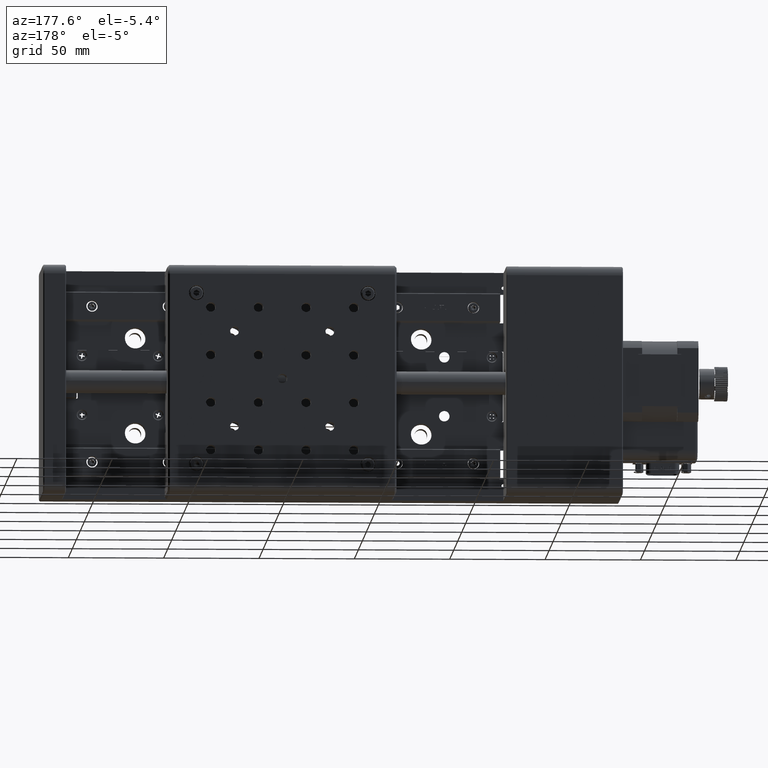
[diagram: clean part render]
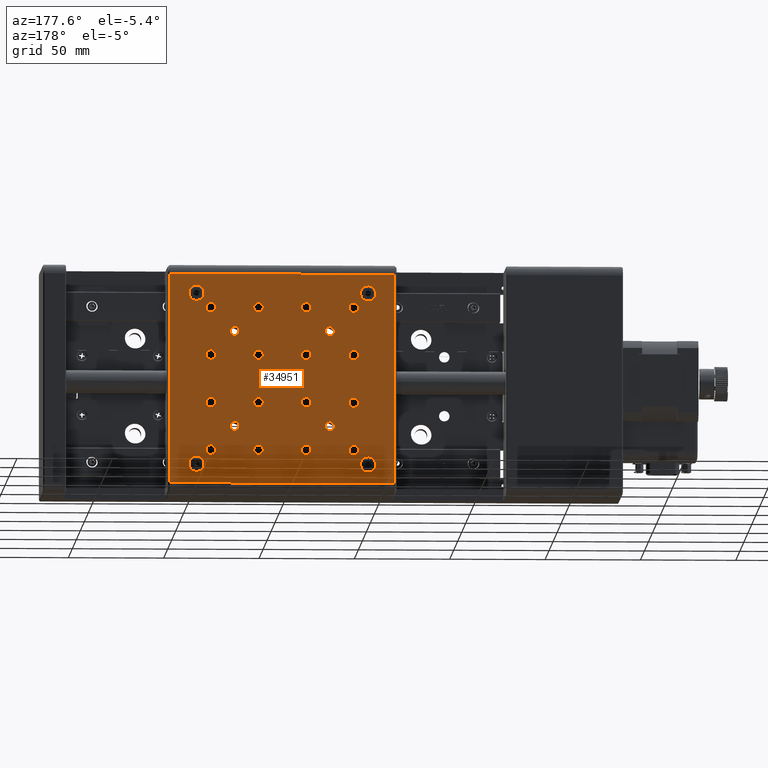
[diagram: same view with one face highlighted and labeled with its STEP entity id]
A machine part, auxiliary view. The second image highlights one B-rep face of the part: STEP entity #34951.
In plain terms, the highlighted planar face has unit normal (0, -1, -0).
Its self-contained STEP definition (entity closure, byte-faithful):
#62 = ORIENTED_EDGE ( 'NONE', *, *, #48765, .F. ) ;
#138 = CARTESIAN_POINT ( 'NONE',  ( -36.90598909781513000, 55.99999999999911900, 79.77887723323858900 ) ) ;
#140 = DIRECTION ( 'NONE',  ( -1.083698070157767700E-016, 1.000000000000000000, 1.359326502037854400E-014 ) ) ;
#260 = CARTESIAN_POINT ( 'NONE',  ( -94.40598909781510900, 55.99999999999904100, 84.77887723323861700 ) ) ;
#458 = ORIENTED_EDGE ( 'NONE', *, *, #40201, .F. ) ;
#499 = FACE_BOUND ( 'NONE', #19659, .T. ) ;
#560 = CARTESIAN_POINT ( 'NONE',  ( -24.40598909781513000, 55.99999999999929700, 67.13630385242964800 ) ) ;
#581 = DIRECTION ( 'NONE',  ( 0.0000000000000000000, 1.387778780781444400E-014, -1.000000000000000000 ) ) ;
#597 = EDGE_CURVE ( 'NONE', #28675, #31949, #2359, .T. ) ;
#707 = EDGE_CURVE ( 'NONE', #32629, #1631, #48254, .T. ) ;
#729 = DIRECTION ( 'NONE',  ( 0.0000000000000000000, 1.387778780781444400E-014, -1.000000000000000000 ) ) ;
#1130 = CIRCLE ( 'NONE', #40833, 2.500000000000002200 ) ;
#1316 = DIRECTION ( 'NONE',  ( -1.083698070157767700E-016, 1.000000000000000000, 1.359326502037854400E-014 ) ) ;
#1412 = DIRECTION ( 'NONE',  ( 0.0000000000000000000, -1.471709415559302100E-014, 1.000000000000000000 ) ) ;
#1460 = AXIS2_PLACEMENT_3D ( 'NONE', #10385, #22202, #37020 ) ;
#1462 = EDGE_CURVE ( 'NONE', #45322, #10440, #29090, .T. ) ;
#1483 = ORIENTED_EDGE ( 'NONE', *, *, #24450, .F. ) ;
#1528 = CIRCLE ( 'NONE', #15357, 2.500000000000002200 ) ;
#1631 = VERTEX_POINT ( 'NONE', #15731 ) ;
#1726 = EDGE_LOOP ( 'NONE', ( #2858, #43767 ) ) ;
#1879 = EDGE_CURVE ( 'NONE', #34100, #32783, #36787, .T. ) ;
#1881 = CIRCLE ( 'NONE', #18688, 2.500000000000002200 ) ;
#2012 = ORIENTED_EDGE ( 'NONE', *, *, #18579, .F. ) ;
#2258 = LINE ( 'NONE', #25905, #35017 ) ;
#2359 = CIRCLE ( 'NONE', #13869, 2.500000000000002200 ) ;
#2389 = VERTEX_POINT ( 'NONE', #33645 ) ;
#2622 = EDGE_CURVE ( 'NONE', #45271, #20333, #4507, .T. ) ;
#2659 = ORIENTED_EDGE ( 'NONE', *, *, #6266, .F. ) ;
#2678 = EDGE_CURVE ( 'NONE', #26879, #48123, #6927, .T. ) ;
#2858 = ORIENTED_EDGE ( 'NONE', *, *, #30262, .F. ) ;
#2871 = CARTESIAN_POINT ( 'NONE',  ( -86.90598909781513700, 55.99999999999948800, 52.27887723323856800 ) ) ;
#2999 = EDGE_CURVE ( 'NONE', #16233, #32629, #39120, .T. ) ;
#3268 = AXIS2_PLACEMENT_3D ( 'NONE', #23158, #11683, #45445 ) ;
#3298 = AXIS2_PLACEMENT_3D ( 'NONE', #9746, #6226, #48185 ) ;
#3360 = AXIS2_PLACEMENT_3D ( 'NONE', #38379, #4339, #42346 ) ;
#3505 = VERTEX_POINT ( 'NONE', #34522 ) ;
#3516 = DIRECTION ( 'NONE',  ( -2.168404344971006900E-016, 1.387778780781444400E-014, -1.000000000000000000 ) ) ;
#3585 = CIRCLE ( 'NONE', #25161, 4.000000000000003600 ) ;
#3620 = EDGE_CURVE ( 'NONE', #11830, #6660, #44393, .T. ) ;
#3704 = VERTEX_POINT ( 'NONE', #25531 ) ;
#3810 = AXIS2_PLACEMENT_3D ( 'NONE', #45043, #7442, #33767 ) ;
#3888 = VECTOR ( 'NONE', #48721, 1000.000000000000000 ) ;
#3992 = DIRECTION ( 'NONE',  ( 0.0000000000000000000, -1.387778780781441400E-014, 1.000000000000000000 ) ) ;
#4073 = AXIS2_PLACEMENT_3D ( 'NONE', #20238, #4906, #1412 ) ;
#4074 = EDGE_LOOP ( 'NONE', ( #44822, #14979 ) ) ;
#4124 = FACE_BOUND ( 'NONE', #20186, .T. ) ;
#4190 = DIRECTION ( 'NONE',  ( -1.083698070157767700E-016, 1.000000000000000000, 1.359326502037854400E-014 ) ) ;
#4339 = DIRECTION ( 'NONE',  ( -1.083698070157767700E-016, 1.000000000000000000, 1.359326502037854400E-014 ) ) ;
#4489 = DIRECTION ( 'NONE',  ( -1.083698070157767700E-016, 1.000000000000000000, 1.359326502037854400E-014 ) ) ;
#4507 = CIRCLE ( 'NONE', #15844, 2.500000000000004000 ) ;
#4614 = DIRECTION ( 'NONE',  ( -1.083698070157767700E-016, 1.000000000000000000, 1.359326502037854400E-014 ) ) ;
#4655 = AXIS2_PLACEMENT_3D ( 'NONE', #39934, #9617, #32104 ) ;
#4806 = DIRECTION ( 'NONE',  ( -1.083698070157767700E-016, 1.000000000000000000, 1.359326502037854400E-014 ) ) ;
#4842 = DIRECTION ( 'NONE',  ( -1.083698070157767700E-016, 1.000000000000000000, 1.359326502037854400E-014 ) ) ;
#4905 = DIRECTION ( 'NONE',  ( 0.0000000000000000000, 1.387778780781444400E-014, -1.000000000000000000 ) ) ;
#4906 = DIRECTION ( 'NONE',  ( -1.083698070157767700E-016, 1.000000000000000000, 1.359326502037854400E-014 ) ) ;
#5577 = EDGE_CURVE ( 'NONE', #27052, #22741, #37175, .T. ) ;
#5640 = CARTESIAN_POINT ( 'NONE',  ( -11.90598909781514400, 55.99999999999946000, 54.77887723323857500 ) ) ;
#6068 = CIRCLE ( 'NONE', #8702, 4.000000000000003600 ) ;
#6226 = DIRECTION ( 'NONE',  ( -1.083698070157767700E-016, 1.000000000000000000, 1.359326502037854400E-014 ) ) ;
#6234 = DIRECTION ( 'NONE',  ( 0.0000000000000000000, 1.387778780781444400E-014, -1.000000000000000000 ) ) ;
#6266 = EDGE_CURVE ( 'NONE', #2389, #25468, #21015, .T. ) ;
#6274 = DIRECTION ( 'NONE',  ( 0.0000000000000000000, -1.387778780781444400E-014, 1.000000000000000000 ) ) ;
#6280 = CARTESIAN_POINT ( 'NONE',  ( -61.90598909781511600, 55.99999999999982900, 27.27887723323857500 ) ) ;
#6378 = DIRECTION ( 'NONE',  ( -1.083698070157767700E-016, 1.000000000000000000, 1.359326502037854400E-014 ) ) ;
#6411 = CARTESIAN_POINT ( 'NONE',  ( -94.40598909781513700, 56.00000000000032700, -9.221122766761409300 ) ) ;
#6430 = EDGE_CURVE ( 'NONE', #6660, #11830, #40045, .T. ) ;
#6440 = DIRECTION ( 'NONE',  ( 0.0000000000000000000, 1.387778780781444400E-014, -1.000000000000000000 ) ) ;
#6450 = ORIENTED_EDGE ( 'NONE', *, *, #45654, .F. ) ;
#6498 = FACE_BOUND ( 'NONE', #38605, .T. ) ;
#6660 = VERTEX_POINT ( 'NONE', #13211 ) ;
#6687 = CIRCLE ( 'NONE', #32147, 2.357426619191058700 ) ;
#6875 = CARTESIAN_POINT ( 'NONE',  ( -4.405989097815130200, 55.99999999999904800, 84.77887723323858900 ) ) ;
#6927 = CIRCLE ( 'NONE', #4655, 2.500000000000001300 ) ;
#6968 = CARTESIAN_POINT ( 'NONE',  ( -74.40598909781505200, 55.99999999999999300, 14.77887723323856900 ) ) ;
#7057 = CARTESIAN_POINT ( 'NONE',  ( -24.40598909781510200, 56.00000000000000000, 14.77887723323862600 ) ) ;
#7123 = CARTESIAN_POINT ( 'NONE',  ( -86.90598909781505200, 56.00000000000013500, 4.778877233238543600 ) ) ;
#7170 = CIRCLE ( 'NONE', #17401, 2.357426619191034700 ) ;
#7440 = VERTEX_POINT ( 'NONE', #7123 ) ;
#7442 = DIRECTION ( 'NONE',  ( -1.083698070157767700E-016, 1.000000000000000000, 1.359326502037854400E-014 ) ) ;
#7498 = CIRCLE ( 'NONE', #38063, 3.999999999999996400 ) ;
#7551 = AXIS2_PLACEMENT_3D ( 'NONE', #18556, #29395, #49041 ) ;
#7646 = VERTEX_POINT ( 'NONE', #8611 ) ;
#7739 = DIRECTION ( 'NONE',  ( -1.083698070157767700E-016, 1.000000000000000000, 1.359326502037854400E-014 ) ) ;
#7744 = EDGE_CURVE ( 'NONE', #19585, #15249, #8951, .T. ) ;
#7901 = DIRECTION ( 'NONE',  ( 0.0000000000000000000, 1.387778780781444400E-014, -1.000000000000000000 ) ) ;
#7974 = CARTESIAN_POINT ( 'NONE',  ( -4.405989097815157700, 56.00000000000022000, -1.221122766761444200 ) ) ;
#8109 = VERTEX_POINT ( 'NONE', #30734 ) ;
#8187 = EDGE_CURVE ( 'NONE', #21322, #18132, #1130, .T. ) ;
#8207 = AXIS2_PLACEMENT_3D ( 'NONE', #36540, #36378, #6234 ) ;
#8234 = VERTEX_POINT ( 'NONE', #13493 ) ;
#8328 = FACE_BOUND ( 'NONE', #41207, .T. ) ;
#8393 = CARTESIAN_POINT ( 'NONE',  ( -49.40598909781514400, 55.99999999999962300, 42.27887723323858900 ) ) ;
#8489 = AXIS2_PLACEMENT_3D ( 'NONE', #17581, #29071, #21743 ) ;
#8575 = VERTEX_POINT ( 'NONE', #31918 ) ;
#8611 = CARTESIAN_POINT ( 'NONE',  ( -74.40598909781510900, 55.99999999999928900, 67.13630385242954900 ) ) ;
#8625 = CIRCLE ( 'NONE', #14124, 2.500000000000002200 ) ;
#8702 = AXIS2_PLACEMENT_3D ( 'NONE', #6875, #14377, #3516 ) ;
#8775 = EDGE_CURVE ( 'NONE', #9580, #17708, #17776, .T. ) ;
#8950 = FACE_BOUND ( 'NONE', #48323, .T. ) ;
#8951 = CIRCLE ( 'NONE', #8207, 2.500000000000002200 ) ;
#9006 = AXIS2_PLACEMENT_3D ( 'NONE', #45996, #4190, #34562 ) ;
#9053 = EDGE_LOOP ( 'NONE', ( #27675, #24585 ) ) ;
#9102 = EDGE_LOOP ( 'NONE', ( #46933, #44123 ) ) ;
#9311 = DIRECTION ( 'NONE',  ( 1.727014002062111000E-016, -1.359326502037854100E-014, 1.000000000000000000 ) ) ;
#9404 = CARTESIAN_POINT ( 'NONE',  ( -86.90598909781505200, 56.00000000000019900, -0.2211227667614540600 ) ) ;
#9520 = FACE_BOUND ( 'NONE', #9053, .T. ) ;
#9580 = VERTEX_POINT ( 'NONE', #21718 ) ;
#9617 = DIRECTION ( 'NONE',  ( -1.083698070157767700E-016, 1.000000000000000000, 1.359326502037854400E-014 ) ) ;
#9676 = AXIS2_PLACEMENT_3D ( 'NONE', #30604, #42280, #26754 ) ;
#9746 = CARTESIAN_POINT ( 'NONE',  ( -86.90598909781505200, 56.00000000000017100, 2.278877233238545000 ) ) ;
#9916 = DIRECTION ( 'NONE',  ( -1.083698070157767700E-016, 1.000000000000000000, 1.359326502037854400E-014 ) ) ;
#9973 = ORIENTED_EDGE ( 'NONE', *, *, #14214, .F. ) ;
#10040 = CIRCLE ( 'NONE', #4073, 2.357426619191058700 ) ;
#10309 = VERTEX_POINT ( 'NONE', #31325 ) ;
#10385 = CARTESIAN_POINT ( 'NONE',  ( -86.90598909781513700, 55.99999999999948800, 52.27887723323856800 ) ) ;
#10440 = VERTEX_POINT ( 'NONE', #15328 ) ;
#10525 = CARTESIAN_POINT ( 'NONE',  ( -86.90598909781505200, 56.00000000000017100, 2.278877233238545000 ) ) ;
#10552 = DIRECTION ( 'NONE',  ( 0.0000000000000000000, -1.387778780781446500E-014, 1.000000000000000000 ) ) ;
#10556 = CARTESIAN_POINT ( 'NONE',  ( -61.90598909781508000, 56.00000000000013500, 4.778877233238580000 ) ) ;
#10798 = DIRECTION ( 'NONE',  ( 0.0000000000000000000, 1.471709415559316900E-014, -1.000000000000000000 ) ) ;
#10802 = CIRCLE ( 'NONE', #13057, 2.499999999999999100 ) ;
#10819 = EDGE_LOOP ( 'NONE', ( #11547, #48560 ) ) ;
#10896 = DIRECTION ( 'NONE',  ( -1.083698070157767700E-016, 1.000000000000000000, 1.359326502037854400E-014 ) ) ;
#10954 = EDGE_CURVE ( 'NONE', #39506, #26339, #1528, .T. ) ;
#11234 = EDGE_LOOP ( 'NONE', ( #16473, #18395 ) ) ;
#11305 = EDGE_CURVE ( 'NONE', #8234, #7646, #12266, .T. ) ;
#11368 = VECTOR ( 'NONE', #19412, 1000.000000000000000 ) ;
#11445 = ORIENTED_EDGE ( 'NONE', *, *, #29287, .F. ) ;
#11547 = ORIENTED_EDGE ( 'NONE', *, *, #1462, .F. ) ;
#11583 = DIRECTION ( 'NONE',  ( 0.0000000000000000000, 1.387778780781444400E-014, -1.000000000000000000 ) ) ;
#11620 = CARTESIAN_POINT ( 'NONE',  ( -86.90598909781508000, 55.99999999999982900, 27.27887723323853900 ) ) ;
#11683 = DIRECTION ( 'NONE',  ( -1.083698070157767700E-016, 1.000000000000000000, 1.359326502037854400E-014 ) ) ;
#11830 = VERTEX_POINT ( 'NONE', #15953 ) ;
#11871 = FACE_BOUND ( 'NONE', #17063, .T. ) ;
#11909 = EDGE_CURVE ( 'NONE', #33542, #16233, #45304, .T. ) ;
#12041 = DIRECTION ( 'NONE',  ( -2.168404344971010800E-016, 1.387778780781446900E-014, -1.000000000000000000 ) ) ;
#12152 = CIRCLE ( 'NONE', #9006, 2.500000000000002200 ) ;
#12153 = AXIS2_PLACEMENT_3D ( 'NONE', #37408, #41244, #41582 ) ;
#12199 = VERTEX_POINT ( 'NONE', #41060 ) ;
#12266 = CIRCLE ( 'NONE', #27139, 2.357426619191069300 ) ;
#12283 = DIRECTION ( 'NONE',  ( -1.083698070157767700E-016, 1.000000000000000000, 1.359326502037854400E-014 ) ) ;
#12500 = FACE_BOUND ( 'NONE', #42138, .T. ) ;
#12508 = CARTESIAN_POINT ( 'NONE',  ( -61.90598909781508000, 56.00000000000019900, -0.2211227667614215400 ) ) ;
#12587 = DIRECTION ( 'NONE',  ( 0.0000000000000000000, -1.387778780781443500E-014, 1.000000000000000000 ) ) ;
#12913 = ORIENTED_EDGE ( 'NONE', *, *, #34389, .F. ) ;
#13006 = ORIENTED_EDGE ( 'NONE', *, *, #1879, .F. ) ;
#13057 = AXIS2_PLACEMENT_3D ( 'NONE', #10525, #40683, #17861 ) ;
#13087 = DIRECTION ( 'NONE',  ( -1.083698070157767700E-016, 1.000000000000000000, 1.359326502037854400E-014 ) ) ;
#13196 = VERTEX_POINT ( 'NONE', #47320 ) ;
#13211 = CARTESIAN_POINT ( 'NONE',  ( -11.90598909781514400, 55.99999999999980100, 29.77887723323865300 ) ) ;
#13359 = CIRCLE ( 'NONE', #40578, 2.499999999999998700 ) ;
#13474 = DIRECTION ( 'NONE',  ( 0.0000000000000000000, -1.387778780781444400E-014, 1.000000000000000000 ) ) ;
#13493 = CARTESIAN_POINT ( 'NONE',  ( -74.40598909781510900, 55.99999999999935300, 62.42145061404741600 ) ) ;
#13576 = AXIS2_PLACEMENT_3D ( 'NONE', #32794, #13638, #13474 ) ;
#13638 = DIRECTION ( 'NONE',  ( -1.083698070157767700E-016, 1.000000000000000000, 1.359326502037854400E-014 ) ) ;
#13682 = CARTESIAN_POINT ( 'NONE',  ( -86.90598909781508000, 55.99999999999986500, 24.77887723323853600 ) ) ;
#13684 = AXIS2_PLACEMENT_3D ( 'NONE', #19128, #19788, #45936 ) ;
#13768 = CARTESIAN_POINT ( 'NONE',  ( -24.40598909781510200, 55.99999999999996400, 17.13630385242968000 ) ) ;
#13775 = ORIENTED_EDGE ( 'NONE', *, *, #28018, .F. ) ;
#13869 = AXIS2_PLACEMENT_3D ( 'NONE', #48056, #29083, #6274 ) ;
#13870 = CARTESIAN_POINT ( 'NONE',  ( -86.90598909781513700, 55.99999999999945300, 54.77887723323856800 ) ) ;
#13920 = DIRECTION ( 'NONE',  ( 0.0000000000000000000, 1.387778780781444400E-014, -1.000000000000000000 ) ) ;
#13933 = DIRECTION ( 'NONE',  ( -1.083698070157767700E-016, 1.000000000000000000, 1.359326502037854400E-014 ) ) ;
#14124 = AXIS2_PLACEMENT_3D ( 'NONE', #31925, #20419, #47549 ) ;
#14214 = EDGE_CURVE ( 'NONE', #7440, #42199, #48055, .T. ) ;
#14377 = DIRECTION ( 'NONE',  ( -1.083698070157767700E-016, 1.000000000000000000, 1.359326502037854400E-014 ) ) ;
#14513 = VERTEX_POINT ( 'NONE', #41863 ) ;
#14582 = CARTESIAN_POINT ( 'NONE',  ( -36.90598909781512300, 55.99999999999983700, 27.27887723323861000 ) ) ;
#14680 = VERTEX_POINT ( 'NONE', #29146 ) ;
#14814 = ORIENTED_EDGE ( 'NONE', *, *, #5577, .F. ) ;
#14833 = ORIENTED_EDGE ( 'NONE', *, *, #3620, .F. ) ;
#14858 = FACE_BOUND ( 'NONE', #20116, .T. ) ;
#14979 = ORIENTED_EDGE ( 'NONE', *, *, #31561, .F. ) ;
#15249 = VERTEX_POINT ( 'NONE', #138 ) ;
#15251 = CARTESIAN_POINT ( 'NONE',  ( -11.90598909781513700, 55.99999999999911900, 79.77887723323858900 ) ) ;
#15328 = CARTESIAN_POINT ( 'NONE',  ( -94.40598909781513700, 56.00000000000021300, -1.221122766761416400 ) ) ;
#15357 = AXIS2_PLACEMENT_3D ( 'NONE', #11620, #12283, #581 ) ;
#15386 = CIRCLE ( 'NONE', #38295, 2.500000000000007500 ) ;
#15731 = CARTESIAN_POINT ( 'NONE',  ( -108.4059890978151400, 55.99999999999890600, 94.77887723323866000 ) ) ;
#15844 = AXIS2_PLACEMENT_3D ( 'NONE', #19764, #4614, #39291 ) ;
#15953 = CARTESIAN_POINT ( 'NONE',  ( -11.90598909781514400, 55.99999999999987200, 24.77887723323866000 ) ) ;
#16053 = EDGE_CURVE ( 'NONE', #22004, #49424, #39650, .T. ) ;
#16059 = FACE_BOUND ( 'NONE', #1726, .T. ) ;
#16205 = CARTESIAN_POINT ( 'NONE',  ( -108.4059890978151500, 56.00000000000040500, -15.22112276676136700 ) ) ;
#16233 = VERTEX_POINT ( 'NONE', #31562 ) ;
#16298 = ORIENTED_EDGE ( 'NONE', *, *, #22536, .F. ) ;
#16351 = EDGE_CURVE ( 'NONE', #13196, #27532, #43802, .T. ) ;
#16361 = CARTESIAN_POINT ( 'NONE',  ( -36.90598909781507300, 56.00000000000014200, 4.778877233238610200 ) ) ;
#16372 = CARTESIAN_POINT ( 'NONE',  ( -36.90598909781507300, 56.00000000000017800, 2.278877233238607600 ) ) ;
#16473 = ORIENTED_EDGE ( 'NONE', *, *, #26911, .F. ) ;
#17034 = DIRECTION ( 'NONE',  ( 0.0000000000000000000, 1.387778780781444400E-014, -1.000000000000000000 ) ) ;
#17063 = EDGE_LOOP ( 'NONE', ( #14833, #49165 ) ) ;
#17106 = CIRCLE ( 'NONE', #21694, 2.500000000000001300 ) ;
#17401 = AXIS2_PLACEMENT_3D ( 'NONE', #6968, #33622, #10798 ) ;
#17510 = CIRCLE ( 'NONE', #9676, 2.500000000000002200 ) ;
#17527 = EDGE_CURVE ( 'NONE', #18497, #14680, #46007, .T. ) ;
#17581 = CARTESIAN_POINT ( 'NONE',  ( -94.40598909781513700, 56.00000000000027000, -5.221122766761412800 ) ) ;
#17708 = VERTEX_POINT ( 'NONE', #5640 ) ;
#17761 = AXIS2_PLACEMENT_3D ( 'NONE', #28683, #13087, #17034 ) ;
#17776 = CIRCLE ( 'NONE', #13684, 2.500000000000002200 ) ;
#17861 = DIRECTION ( 'NONE',  ( 0.0000000000000000000, 1.387778780781446100E-014, -1.000000000000000000 ) ) ;
#17863 = DIRECTION ( 'NONE',  ( 0.0000000000000000000, 1.387778780781446900E-014, -1.000000000000000000 ) ) ;
#17867 = FACE_BOUND ( 'NONE', #18432, .T. ) ;
#18053 = DIRECTION ( 'NONE',  ( 0.0000000000000000000, 1.387778780781444900E-014, -1.000000000000000000 ) ) ;
#18132 = VERTEX_POINT ( 'NONE', #30102 ) ;
#18229 = CARTESIAN_POINT ( 'NONE',  ( -49.40598909781515100, 56.00000000000041200, -15.22112276676137400 ) ) ;
#18317 = CARTESIAN_POINT ( 'NONE',  ( -74.40598909781510900, 55.99999999999931800, 64.77887723323848900 ) ) ;
#18395 = ORIENTED_EDGE ( 'NONE', *, *, #35323, .F. ) ;
#18432 = EDGE_LOOP ( 'NONE', ( #49328, #23540 ) ) ;
#18497 = VERTEX_POINT ( 'NONE', #29558 ) ;
#18556 = CARTESIAN_POINT ( 'NONE',  ( -11.90598909781509500, 56.00000000000017800, 2.278877233238656000 ) ) ;
#18579 = EDGE_CURVE ( 'NONE', #20333, #45271, #45758, .T. ) ;
#18597 = CARTESIAN_POINT ( 'NONE',  ( -94.40598909781510900, 55.99999999999909800, 80.77887723323860300 ) ) ;
#18688 = AXIS2_PLACEMENT_3D ( 'NONE', #30798, #45268, #34652 ) ;
#18826 = CARTESIAN_POINT ( 'NONE',  ( -11.90598909781509500, 56.00000000000020600, -0.2211227667613504000 ) ) ;
#19009 = ORIENTED_EDGE ( 'NONE', *, *, #2622, .F. ) ;
#19101 = AXIS2_PLACEMENT_3D ( 'NONE', #42809, #4806, #35311 ) ;
#19128 = CARTESIAN_POINT ( 'NONE',  ( -11.90598909781514400, 55.99999999999949600, 52.27887723323857500 ) ) ;
#19188 = CIRCLE ( 'NONE', #47916, 3.999999999999996400 ) ;
#19383 = CARTESIAN_POINT ( 'NONE',  ( -11.90598909781513700, 55.99999999999915400, 77.27887723323858900 ) ) ;
#19412 = DIRECTION ( 'NONE',  ( -1.727014002062110700E-016, 1.359326502037854100E-014, -1.000000000000000000 ) ) ;
#19498 = ORIENTED_EDGE ( 'NONE', *, *, #38435, .F. ) ;
#19521 = CARTESIAN_POINT ( 'NONE',  ( -86.90598909781508000, 55.99999999999982900, 27.27887723323853900 ) ) ;
#19585 = VERTEX_POINT ( 'NONE', #44418 ) ;
#19659 = EDGE_LOOP ( 'NONE', ( #19498, #27203 ) ) ;
#19682 = VERTEX_POINT ( 'NONE', #15251 ) ;
#19707 = EDGE_CURVE ( 'NONE', #7646, #8234, #40979, .T. ) ;
#19764 = CARTESIAN_POINT ( 'NONE',  ( -36.90598909781507300, 56.00000000000017800, 2.278877233238607600 ) ) ;
#19768 = EDGE_CURVE ( 'NONE', #19682, #3704, #49273, .T. ) ;
#19788 = DIRECTION ( 'NONE',  ( -1.083698070157767700E-016, 1.000000000000000000, 1.359326502037854400E-014 ) ) ;
#20064 = DIRECTION ( 'NONE',  ( -1.083698070157767700E-016, 1.000000000000000000, 1.359326502037854400E-014 ) ) ;
#20092 = ORIENTED_EDGE ( 'NONE', *, *, #11909, .T. ) ;
#20116 = EDGE_LOOP ( 'NONE', ( #25570, #26353 ) ) ;
#20186 = EDGE_LOOP ( 'NONE', ( #16298, #31376 ) ) ;
#20238 = CARTESIAN_POINT ( 'NONE',  ( -24.40598909781510200, 56.00000000000000000, 14.77887723323862600 ) ) ;
#20333 = VERTEX_POINT ( 'NONE', #16361 ) ;
#20419 = DIRECTION ( 'NONE',  ( -1.083698070157767700E-016, 1.000000000000000000, 1.359326502037854400E-014 ) ) ;
#20611 = ORIENTED_EDGE ( 'NONE', *, *, #11305, .F. ) ;
#20760 = AXIS2_PLACEMENT_3D ( 'NONE', #19383, #46040, #729 ) ;
#21015 = CIRCLE ( 'NONE', #32425, 4.000000000000003600 ) ;
#21024 = DIRECTION ( 'NONE',  ( -1.083698070157767700E-016, 1.000000000000000000, 1.359326502037854400E-014 ) ) ;
#21142 = CARTESIAN_POINT ( 'NONE',  ( -86.90598909781515100, 55.99999999999918300, 74.77887723323856100 ) ) ;
#21312 = DIRECTION ( 'NONE',  ( -1.083698070157767700E-016, 1.000000000000000000, 1.359326502037854400E-014 ) ) ;
#21322 = VERTEX_POINT ( 'NONE', #23745 ) ;
#21397 = ORIENTED_EDGE ( 'NONE', *, *, #47792, .F. ) ;
#21440 = PLANE ( 'NONE',  #46438 ) ;
#21550 = EDGE_LOOP ( 'NONE', ( #13006, #30877 ) ) ;
#21694 = AXIS2_PLACEMENT_3D ( 'NONE', #32738, #9916, #18053 ) ;
#21717 = DIRECTION ( 'NONE',  ( -1.083698070157767700E-016, 1.000000000000000000, 1.359326502037854400E-014 ) ) ;
#21718 = CARTESIAN_POINT ( 'NONE',  ( -11.90598909781514400, 55.99999999999953100, 49.77887723323857500 ) ) ;
#21743 = DIRECTION ( 'NONE',  ( 0.0000000000000000000, 1.387778780781446900E-014, -1.000000000000000000 ) ) ;
#21856 = ORIENTED_EDGE ( 'NONE', *, *, #16053, .F. ) ;
#21990 = VERTEX_POINT ( 'NONE', #21142 ) ;
#22004 = VERTEX_POINT ( 'NONE', #40626 ) ;
#22202 = DIRECTION ( 'NONE',  ( -1.083698070157767700E-016, 1.000000000000000000, 1.359326502037854400E-014 ) ) ;
#22254 = EDGE_CURVE ( 'NONE', #8575, #45541, #17510, .T. ) ;
#22519 = VERTEX_POINT ( 'NONE', #13768 ) ;
#22536 = EDGE_CURVE ( 'NONE', #18132, #21322, #48473, .T. ) ;
#22588 = ORIENTED_EDGE ( 'NONE', *, *, #45372, .F. ) ;
#22596 = FACE_BOUND ( 'NONE', #46357, .T. ) ;
#22741 = VERTEX_POINT ( 'NONE', #560 ) ;
#22748 = EDGE_LOOP ( 'NONE', ( #46086, #20092, #36609, #34433 ) ) ;
#22770 = CIRCLE ( 'NONE', #40091, 2.500000000000002200 ) ;
#23009 = DIRECTION ( 'NONE',  ( -1.083698070157767700E-016, 1.000000000000000000, 1.359326502037854400E-014 ) ) ;
#23123 = CIRCLE ( 'NONE', #27060, 2.500000000000002200 ) ;
#23158 = CARTESIAN_POINT ( 'NONE',  ( -24.40598909781513000, 55.99999999999932500, 64.77887723323857500 ) ) ;
#23341 = EDGE_CURVE ( 'NONE', #3704, #19682, #44831, .T. ) ;
#23540 = ORIENTED_EDGE ( 'NONE', *, *, #597, .F. ) ;
#23707 = EDGE_CURVE ( 'NONE', #35011, #14513, #38296, .T. ) ;
#23745 = CARTESIAN_POINT ( 'NONE',  ( -61.90598909781511600, 55.99999999999979400, 29.77887723323857500 ) ) ;
#23800 = FACE_BOUND ( 'NONE', #10819, .T. ) ;
#24450 = EDGE_CURVE ( 'NONE', #10309, #12199, #42961, .T. ) ;
#24585 = ORIENTED_EDGE ( 'NONE', *, *, #10954, .F. ) ;
#24803 = EDGE_LOOP ( 'NONE', ( #30780, #6450 ) ) ;
#25110 = AXIS2_PLACEMENT_3D ( 'NONE', #44937, #38160, #37983 ) ;
#25161 = AXIS2_PLACEMENT_3D ( 'NONE', #260, #42124, #33979 ) ;
#25368 = DIRECTION ( 'NONE',  ( 0.0000000000000000000, -1.387778780781444400E-014, 1.000000000000000000 ) ) ;
#25468 = VERTEX_POINT ( 'NONE', #18597 ) ;
#25531 = CARTESIAN_POINT ( 'NONE',  ( -11.90598909781513700, 55.99999999999919000, 74.77887723323858900 ) ) ;
#25535 = CIRCLE ( 'NONE', #25759, 2.357426619191034700 ) ;
#25570 = ORIENTED_EDGE ( 'NONE', *, *, #42949, .F. ) ;
#25759 = AXIS2_PLACEMENT_3D ( 'NONE', #47817, #21024, #36179 ) ;
#25808 = EDGE_CURVE ( 'NONE', #32783, #34100, #22770, .T. ) ;
#25905 = CARTESIAN_POINT ( 'NONE',  ( -49.40598909781513700, 55.99999999999891300, 94.77887723323866000 ) ) ;
#26157 = FACE_BOUND ( 'NONE', #31553, .T. ) ;
#26277 = AXIS2_PLACEMENT_3D ( 'NONE', #27479, #4489, #35164 ) ;
#26339 = VERTEX_POINT ( 'NONE', #13682 ) ;
#26353 = ORIENTED_EDGE ( 'NONE', *, *, #23707, .F. ) ;
#26590 = EDGE_CURVE ( 'NONE', #45541, #8575, #1881, .T. ) ;
#26717 = CIRCLE ( 'NONE', #39513, 2.500000000000002200 ) ;
#26754 = DIRECTION ( 'NONE',  ( 0.0000000000000000000, 1.387778780781444400E-014, -1.000000000000000000 ) ) ;
#26774 = FACE_BOUND ( 'NONE', #9102, .T. ) ;
#26879 = VERTEX_POINT ( 'NONE', #10556 ) ;
#26884 = VERTEX_POINT ( 'NONE', #40711 ) ;
#26911 = EDGE_CURVE ( 'NONE', #32577, #22519, #6687, .T. ) ;
#27052 = VERTEX_POINT ( 'NONE', #49197 ) ;
#27060 = AXIS2_PLACEMENT_3D ( 'NONE', #40887, #7739, #7901 ) ;
#27139 = AXIS2_PLACEMENT_3D ( 'NONE', #18317, #41316, #48957 ) ;
#27203 = ORIENTED_EDGE ( 'NONE', *, *, #17527, .F. ) ;
#27479 = CARTESIAN_POINT ( 'NONE',  ( -11.90598909781513700, 55.99999999999915400, 77.27887723323858900 ) ) ;
#27490 = CARTESIAN_POINT ( 'NONE',  ( -24.40598909781513000, 55.99999999999932500, 64.77887723323857500 ) ) ;
#27491 = EDGE_CURVE ( 'NONE', #42199, #7440, #10802, .T. ) ;
#27532 = VERTEX_POINT ( 'NONE', #32698 ) ;
#27553 = CARTESIAN_POINT ( 'NONE',  ( -61.90598909781511600, 55.99999999999982900, 27.27887723323857500 ) ) ;
#27675 = ORIENTED_EDGE ( 'NONE', *, *, #44153, .F. ) ;
#27858 = CIRCLE ( 'NONE', #32205, 3.999999999999996400 ) ;
#28018 = EDGE_CURVE ( 'NONE', #17708, #9580, #41143, .T. ) ;
#28578 = FACE_BOUND ( 'NONE', #21550, .T. ) ;
#28675 = VERTEX_POINT ( 'NONE', #45202 ) ;
#28683 = CARTESIAN_POINT ( 'NONE',  ( -36.90598909781513700, 55.99999999999949600, 52.27887723323858200 ) ) ;
#28743 = ORIENTED_EDGE ( 'NONE', *, *, #22254, .F. ) ;
#29071 = DIRECTION ( 'NONE',  ( -1.083698070157767700E-016, 1.000000000000000000, 1.359326502037854400E-014 ) ) ;
#29083 = DIRECTION ( 'NONE',  ( -1.083698070157767700E-016, 1.000000000000000000, 1.359326502037854400E-014 ) ) ;
#29090 = CIRCLE ( 'NONE', #8489, 3.999999999999996400 ) ;
#29107 = AXIS2_PLACEMENT_3D ( 'NONE', #37539, #33386, #10552 ) ;
#29138 = FACE_BOUND ( 'NONE', #48313, .T. ) ;
#29146 = CARTESIAN_POINT ( 'NONE',  ( -36.90598909781512300, 55.99999999999987200, 24.77887723323861000 ) ) ;
#29181 = CARTESIAN_POINT ( 'NONE',  ( -94.40598909781513700, 56.00000000000027000, -5.221122766761412800 ) ) ;
#29287 = EDGE_CURVE ( 'NONE', #49424, #22004, #15386, .T. ) ;
#29395 = DIRECTION ( 'NONE',  ( -1.083698070157767700E-016, 1.000000000000000000, 1.359326502037854400E-014 ) ) ;
#29418 = DIRECTION ( 'NONE',  ( 1.000000000000000000, 1.083698070157791000E-016, -1.727014250132936800E-016 ) ) ;
#29558 = CARTESIAN_POINT ( 'NONE',  ( -36.90598909781512300, 55.99999999999980100, 29.77887723323860700 ) ) ;
#30087 = EDGE_LOOP ( 'NONE', ( #14814, #458 ) ) ;
#30102 = CARTESIAN_POINT ( 'NONE',  ( -61.90598909781511600, 55.99999999999986500, 24.77887723323857100 ) ) ;
#30228 = DIRECTION ( 'NONE',  ( 1.727014002062110700E-016, -1.359326502037854100E-014, 1.000000000000000000 ) ) ;
#30262 = EDGE_CURVE ( 'NONE', #48123, #26879, #17106, .T. ) ;
#30434 = CARTESIAN_POINT ( 'NONE',  ( 9.594010902184861000, 55.99999999999892000, 94.77887723323864600 ) ) ;
#30604 = CARTESIAN_POINT ( 'NONE',  ( -49.40598909781514400, 55.99999999999965900, 39.77887723323858900 ) ) ;
#30684 = ORIENTED_EDGE ( 'NONE', *, *, #44353, .F. ) ;
#30704 = CIRCLE ( 'NONE', #12153, 2.500000000000002200 ) ;
#30734 = CARTESIAN_POINT ( 'NONE',  ( -86.90598909781515100, 55.99999999999911200, 79.77887723323856100 ) ) ;
#30780 = ORIENTED_EDGE ( 'NONE', *, *, #39243, .F. ) ;
#30798 = CARTESIAN_POINT ( 'NONE',  ( -49.40598909781514400, 55.99999999999965900, 39.77887723323858900 ) ) ;
#30877 = ORIENTED_EDGE ( 'NONE', *, *, #25808, .F. ) ;
#30999 = CARTESIAN_POINT ( 'NONE',  ( -4.405989097815157700, 56.00000000000027700, -5.221122766761440400 ) ) ;
#31037 = AXIS2_PLACEMENT_3D ( 'NONE', #6280, #13933, #6440 ) ;
#31121 = CIRCLE ( 'NONE', #3268, 2.357426619191062200 ) ;
#31325 = CARTESIAN_POINT ( 'NONE',  ( -4.405989097815131000, 55.99999999999910500, 80.77887723323857500 ) ) ;
#31376 = ORIENTED_EDGE ( 'NONE', *, *, #8187, .F. ) ;
#31553 = EDGE_LOOP ( 'NONE', ( #1483, #43832 ) ) ;
#31561 = EDGE_CURVE ( 'NONE', #15249, #19585, #8625, .T. ) ;
#31562 = CARTESIAN_POINT ( 'NONE',  ( 9.594010902184848500, 56.00000000000041900, -15.22112276676138100 ) ) ;
#31772 = CARTESIAN_POINT ( 'NONE',  ( -4.405989097815158600, 56.00000000000033400, -9.221122766761437700 ) ) ;
#31918 = CARTESIAN_POINT ( 'NONE',  ( -49.40598909781514400, 55.99999999999969400, 37.27887723323858200 ) ) ;
#31925 = CARTESIAN_POINT ( 'NONE',  ( -36.90598909781513000, 55.99999999999915400, 77.27887723323858900 ) ) ;
#31949 = VERTEX_POINT ( 'NONE', #38677 ) ;
#32008 = DIRECTION ( 'NONE',  ( 0.0000000000000000000, 1.471709415559299900E-014, -1.000000000000000000 ) ) ;
#32104 = DIRECTION ( 'NONE',  ( 0.0000000000000000000, 1.387778780781444900E-014, -1.000000000000000000 ) ) ;
#32113 = FACE_BOUND ( 'NONE', #33572, .T. ) ;
#32122 = DIRECTION ( 'NONE',  ( 1.083698070157767700E-016, -1.000000000000000000, -1.359326502037854100E-014 ) ) ;
#32147 = AXIS2_PLACEMENT_3D ( 'NONE', #7057, #21717, #33713 ) ;
#32205 = AXIS2_PLACEMENT_3D ( 'NONE', #30999, #23009, #12041 ) ;
#32425 = AXIS2_PLACEMENT_3D ( 'NONE', #37067, #41077, #13920 ) ;
#32577 = VERTEX_POINT ( 'NONE', #47664 ) ;
#32621 = CARTESIAN_POINT ( 'NONE',  ( -49.40598909781514400, 55.99999999999965900, 39.77887723323858900 ) ) ;
#32629 = VERTEX_POINT ( 'NONE', #16205 ) ;
#32698 = CARTESIAN_POINT ( 'NONE',  ( -36.90598909781513700, 55.99999999999946000, 54.77887723323858200 ) ) ;
#32738 = CARTESIAN_POINT ( 'NONE',  ( -61.90598909781508000, 56.00000000000017100, 2.278877233238580000 ) ) ;
#32744 = FACE_BOUND ( 'NONE', #11234, .T. ) ;
#32783 = VERTEX_POINT ( 'NONE', #13870 ) ;
#32794 = CARTESIAN_POINT ( 'NONE',  ( -61.90598909781515100, 55.99999999999914700, 77.27887723323856100 ) ) ;
#33386 = DIRECTION ( 'NONE',  ( -1.083698070157767700E-016, 1.000000000000000000, 1.359326502037854400E-014 ) ) ;
#33542 = VERTEX_POINT ( 'NONE', #30434 ) ;
#33572 = EDGE_LOOP ( 'NONE', ( #30684, #12913 ) ) ;
#33622 = DIRECTION ( 'NONE',  ( -1.083698070157767700E-016, 1.000000000000000000, 1.359326502037854400E-014 ) ) ;
#33645 = CARTESIAN_POINT ( 'NONE',  ( -94.40598909781510900, 55.99999999999899100, 88.77887723323860300 ) ) ;
#33713 = DIRECTION ( 'NONE',  ( 0.0000000000000000000, -1.471709415559302100E-014, 1.000000000000000000 ) ) ;
#33767 = DIRECTION ( 'NONE',  ( 0.0000000000000000000, -1.471709415559295500E-014, 1.000000000000000000 ) ) ;
#33978 = CARTESIAN_POINT ( 'NONE',  ( -61.90598909781515100, 55.99999999999914700, 77.27887723323856100 ) ) ;
#33979 = DIRECTION ( 'NONE',  ( 0.0000000000000000000, 1.387778780781444400E-014, -1.000000000000000000 ) ) ;
#34100 = VERTEX_POINT ( 'NONE', #38246 ) ;
#34389 = EDGE_CURVE ( 'NONE', #26884, #3505, #7170, .T. ) ;
#34433 = ORIENTED_EDGE ( 'NONE', *, *, #707, .T. ) ;
#34522 = CARTESIAN_POINT ( 'NONE',  ( -74.40598909781505200, 56.00000000000002800, 12.42145061404753600 ) ) ;
#34562 = DIRECTION ( 'NONE',  ( 0.0000000000000000000, -1.387778780781444400E-014, 1.000000000000000000 ) ) ;
#34652 = DIRECTION ( 'NONE',  ( 0.0000000000000000000, 1.387778780781444400E-014, -1.000000000000000000 ) ) ;
#34937 = CARTESIAN_POINT ( 'NONE',  ( -86.90598909781508000, 55.99999999999979400, 29.77887723323854300 ) ) ;
#34951 = ADVANCED_FACE ( 'NONE', ( #44671, #26157, #23800, #16059, #8950, #9520, #4124, #17867, #28578, #45218, #8328, #26774, #35130, #14858, #42248, #32113, #41053, #32744, #49398, #499, #11871, #6498, #29138, #22596, #35715, #12500 ), #21440, .F. ) ;
#35011 = VERTEX_POINT ( 'NONE', #44897 ) ;
#35017 = VECTOR ( 'NONE', #29418, 1000.000000000000000 ) ;
#35130 = FACE_BOUND ( 'NONE', #4074, .T. ) ;
#35164 = DIRECTION ( 'NONE',  ( 0.0000000000000000000, 1.387778780781444400E-014, -1.000000000000000000 ) ) ;
#35186 = ORIENTED_EDGE ( 'NONE', *, *, #16351, .F. ) ;
#35311 = DIRECTION ( 'NONE',  ( 0.0000000000000000000, -1.387778780781444400E-014, 1.000000000000000000 ) ) ;
#35323 = EDGE_CURVE ( 'NONE', #22519, #32577, #10040, .T. ) ;
#35484 = DIRECTION ( 'NONE',  ( 0.0000000000000000000, -1.387778780781446500E-014, 1.000000000000000000 ) ) ;
#35715 = FACE_OUTER_BOUND ( 'NONE', #22748, .T. ) ;
#35836 = ORIENTED_EDGE ( 'NONE', *, *, #27491, .F. ) ;
#36179 = DIRECTION ( 'NONE',  ( 0.0000000000000000000, 1.471709415559316900E-014, -1.000000000000000000 ) ) ;
#36250 = EDGE_CURVE ( 'NONE', #31949, #28675, #48681, .T. ) ;
#36254 = EDGE_LOOP ( 'NONE', ( #21397, #62 ) ) ;
#36378 = DIRECTION ( 'NONE',  ( -1.083698070157767700E-016, 1.000000000000000000, 1.359326502037854400E-014 ) ) ;
#36540 = CARTESIAN_POINT ( 'NONE',  ( -36.90598909781513000, 55.99999999999915400, 77.27887723323858900 ) ) ;
#36609 = ORIENTED_EDGE ( 'NONE', *, *, #2999, .T. ) ;
#36787 = CIRCLE ( 'NONE', #1460, 2.500000000000002200 ) ;
#36857 = AXIS2_PLACEMENT_3D ( 'NONE', #27490, #4842, #32008 ) ;
#36932 = VECTOR ( 'NONE', #30228, 1000.000000000000000 ) ;
#37020 = DIRECTION ( 'NONE',  ( 0.0000000000000000000, -1.387778780781444400E-014, 1.000000000000000000 ) ) ;
#37067 = CARTESIAN_POINT ( 'NONE',  ( -94.40598909781510900, 55.99999999999904100, 84.77887723323861700 ) ) ;
#37175 = CIRCLE ( 'NONE', #36857, 2.357426619191062200 ) ;
#37408 = CARTESIAN_POINT ( 'NONE',  ( -86.90598909781515100, 55.99999999999914700, 77.27887723323856100 ) ) ;
#37539 = CARTESIAN_POINT ( 'NONE',  ( -11.90598909781514400, 55.99999999999983700, 27.27887723323865600 ) ) ;
#37983 = DIRECTION ( 'NONE',  ( 0.0000000000000000000, 1.387778780781444400E-014, -1.000000000000000000 ) ) ;
#38063 = AXIS2_PLACEMENT_3D ( 'NONE', #29181, #6378, #17863 ) ;
#38083 = DIRECTION ( 'NONE',  ( 0.0000000000000000000, -1.387778780781446500E-014, 1.000000000000000000 ) ) ;
#38129 = VERTEX_POINT ( 'NONE', #31772 ) ;
#38160 = DIRECTION ( 'NONE',  ( -1.083698070157767700E-016, 1.000000000000000000, 1.359326502037854400E-014 ) ) ;
#38246 = CARTESIAN_POINT ( 'NONE',  ( -86.90598909781513700, 55.99999999999952400, 49.77887723323856800 ) ) ;
#38295 = AXIS2_PLACEMENT_3D ( 'NONE', #45803, #140, #3992 ) ;
#38296 = CIRCLE ( 'NONE', #38439, 2.500000000000002200 ) ;
#38379 = CARTESIAN_POINT ( 'NONE',  ( -11.90598909781514400, 55.99999999999983700, 27.27887723323865600 ) ) ;
#38435 = EDGE_CURVE ( 'NONE', #14680, #18497, #13359, .T. ) ;
#38439 = AXIS2_PLACEMENT_3D ( 'NONE', #33978, #49099, #45251 ) ;
#38605 = EDGE_LOOP ( 'NONE', ( #11445, #21856 ) ) ;
#38677 = CARTESIAN_POINT ( 'NONE',  ( -61.90598909781514400, 55.99999999999952400, 49.77887723323857500 ) ) ;
#39091 = ORIENTED_EDGE ( 'NONE', *, *, #19707, .F. ) ;
#39120 = LINE ( 'NONE', #18229, #3888 ) ;
#39223 = CARTESIAN_POINT ( 'NONE',  ( -4.405989097815130200, 55.99999999999904800, 84.77887723323858900 ) ) ;
#39243 = EDGE_CURVE ( 'NONE', #38129, #47518, #19188, .T. ) ;
#39291 = DIRECTION ( 'NONE',  ( 0.0000000000000000000, -1.387778780781443500E-014, 1.000000000000000000 ) ) ;
#39506 = VERTEX_POINT ( 'NONE', #34937 ) ;
#39513 = AXIS2_PLACEMENT_3D ( 'NONE', #19521, #46011, #11583 ) ;
#39546 = DIRECTION ( 'NONE',  ( -1.083698070157767700E-016, 1.000000000000000000, 1.359326502037854400E-014 ) ) ;
#39650 = CIRCLE ( 'NONE', #7551, 2.500000000000007500 ) ;
#39934 = CARTESIAN_POINT ( 'NONE',  ( -61.90598909781508000, 56.00000000000017100, 2.278877233238580000 ) ) ;
#40045 = CIRCLE ( 'NONE', #3360, 2.499999999999998700 ) ;
#40084 = EDGE_CURVE ( 'NONE', #12199, #10309, #6068, .T. ) ;
#40091 = AXIS2_PLACEMENT_3D ( 'NONE', #2871, #48024, #25368 ) ;
#40201 = EDGE_CURVE ( 'NONE', #22741, #27052, #31121, .T. ) ;
#40578 = AXIS2_PLACEMENT_3D ( 'NONE', #14582, #10896, #38083 ) ;
#40626 = CARTESIAN_POINT ( 'NONE',  ( -11.90598909781509500, 56.00000000000014200, 4.778877233238662600 ) ) ;
#40683 = DIRECTION ( 'NONE',  ( -1.083698070157767700E-016, 1.000000000000000000, 1.359326502037854400E-014 ) ) ;
#40711 = CARTESIAN_POINT ( 'NONE',  ( -74.40598909781505200, 55.99999999999995700, 17.13630385242960600 ) ) ;
#40833 = AXIS2_PLACEMENT_3D ( 'NONE', #27553, #20064, #4905 ) ;
#40887 = CARTESIAN_POINT ( 'NONE',  ( -36.90598909781513700, 55.99999999999949600, 52.27887723323858200 ) ) ;
#40961 = DIRECTION ( 'NONE',  ( -2.168404344971010800E-016, 1.387778780781446900E-014, -1.000000000000000000 ) ) ;
#40979 = CIRCLE ( 'NONE', #3810, 2.357426619191069300 ) ;
#41053 = FACE_BOUND ( 'NONE', #41155, .T. ) ;
#41060 = CARTESIAN_POINT ( 'NONE',  ( -4.405989097815130200, 55.99999999999899800, 88.77887723323857500 ) ) ;
#41077 = DIRECTION ( 'NONE',  ( -1.083698070157767700E-016, 1.000000000000000000, 1.359326502037854400E-014 ) ) ;
#41143 = CIRCLE ( 'NONE', #25110, 2.500000000000002200 ) ;
#41155 = EDGE_LOOP ( 'NONE', ( #20611, #39091 ) ) ;
#41207 = EDGE_LOOP ( 'NONE', ( #46595, #13775 ) ) ;
#41244 = DIRECTION ( 'NONE',  ( -1.083698070157767700E-016, 1.000000000000000000, 1.359326502037854400E-014 ) ) ;
#41316 = DIRECTION ( 'NONE',  ( -1.083698070157767700E-016, 1.000000000000000000, 1.359326502037854400E-014 ) ) ;
#41582 = DIRECTION ( 'NONE',  ( 0.0000000000000000000, -1.387778780781444400E-014, 1.000000000000000000 ) ) ;
#41863 = CARTESIAN_POINT ( 'NONE',  ( -61.90598909781515100, 55.99999999999918300, 74.77887723323856100 ) ) ;
#42124 = DIRECTION ( 'NONE',  ( -1.083698070157767700E-016, 1.000000000000000000, 1.359326502037854400E-014 ) ) ;
#42138 = EDGE_LOOP ( 'NONE', ( #42770, #2659 ) ) ;
#42199 = VERTEX_POINT ( 'NONE', #9404 ) ;
#42248 = FACE_BOUND ( 'NONE', #36254, .T. ) ;
#42276 = CARTESIAN_POINT ( 'NONE',  ( 9.594010902184853900, 55.99999999999966600, 39.77887723323857500 ) ) ;
#42280 = DIRECTION ( 'NONE',  ( -1.083698070157767700E-016, 1.000000000000000000, 1.359326502037854400E-014 ) ) ;
#42346 = DIRECTION ( 'NONE',  ( 0.0000000000000000000, -1.387778780781446500E-014, 1.000000000000000000 ) ) ;
#42716 = DIRECTION ( 'NONE',  ( -1.083698070157767700E-016, 1.000000000000000000, 1.359326502037854400E-014 ) ) ;
#42770 = ORIENTED_EDGE ( 'NONE', *, *, #46032, .F. ) ;
#42809 = CARTESIAN_POINT ( 'NONE',  ( -61.90598909781514400, 55.99999999999948800, 52.27887723323857500 ) ) ;
#42949 = EDGE_CURVE ( 'NONE', #14513, #35011, #45467, .T. ) ;
#42955 = AXIS2_PLACEMENT_3D ( 'NONE', #39223, #39546, #43379 ) ;
#42961 = CIRCLE ( 'NONE', #42955, 4.000000000000003600 ) ;
#43379 = DIRECTION ( 'NONE',  ( -2.168404344971006900E-016, 1.387778780781444400E-014, -1.000000000000000000 ) ) ;
#43645 = CARTESIAN_POINT ( 'NONE',  ( -36.90598909781512300, 55.99999999999983700, 27.27887723323861000 ) ) ;
#43767 = ORIENTED_EDGE ( 'NONE', *, *, #2678, .F. ) ;
#43802 = CIRCLE ( 'NONE', #17761, 2.500000000000002200 ) ;
#43832 = ORIENTED_EDGE ( 'NONE', *, *, #40084, .F. ) ;
#44123 = ORIENTED_EDGE ( 'NONE', *, *, #19768, .F. ) ;
#44131 = CARTESIAN_POINT ( 'NONE',  ( -4.405989097815157700, 56.00000000000027700, -5.221122766761440400 ) ) ;
#44153 = EDGE_CURVE ( 'NONE', #26339, #39506, #26717, .T. ) ;
#44353 = EDGE_CURVE ( 'NONE', #3505, #26884, #25535, .T. ) ;
#44393 = CIRCLE ( 'NONE', #29107, 2.499999999999998700 ) ;
#44418 = CARTESIAN_POINT ( 'NONE',  ( -36.90598909781513000, 55.99999999999919000, 74.77887723323858900 ) ) ;
#44671 = FACE_BOUND ( 'NONE', #24803, .T. ) ;
#44791 = ORIENTED_EDGE ( 'NONE', *, *, #26590, .F. ) ;
#44822 = ORIENTED_EDGE ( 'NONE', *, *, #7744, .F. ) ;
#44831 = CIRCLE ( 'NONE', #26277, 2.500000000000002200 ) ;
#44897 = CARTESIAN_POINT ( 'NONE',  ( -61.90598909781515100, 55.99999999999911200, 79.77887723323856100 ) ) ;
#44937 = CARTESIAN_POINT ( 'NONE',  ( -11.90598909781514400, 55.99999999999949600, 52.27887723323857500 ) ) ;
#44943 = EDGE_CURVE ( 'NONE', #1631, #33542, #2258, .T. ) ;
#45043 = CARTESIAN_POINT ( 'NONE',  ( -74.40598909781510900, 55.99999999999931800, 64.77887723323848900 ) ) ;
#45202 = CARTESIAN_POINT ( 'NONE',  ( -61.90598909781514400, 55.99999999999945300, 54.77887723323857500 ) ) ;
#45204 = CARTESIAN_POINT ( 'NONE',  ( -108.4059890978151500, 55.99999999999965200, 39.77887723323858900 ) ) ;
#45218 = FACE_BOUND ( 'NONE', #46986, .T. ) ;
#45233 = AXIS2_PLACEMENT_3D ( 'NONE', #43645, #1316, #35484 ) ;
#45251 = DIRECTION ( 'NONE',  ( 0.0000000000000000000, -1.387778780781444400E-014, 1.000000000000000000 ) ) ;
#45268 = DIRECTION ( 'NONE',  ( -1.083698070157767700E-016, 1.000000000000000000, 1.359326502037854400E-014 ) ) ;
#45271 = VERTEX_POINT ( 'NONE', #48030 ) ;
#45304 = LINE ( 'NONE', #42276, #11368 ) ;
#45322 = VERTEX_POINT ( 'NONE', #6411 ) ;
#45372 = EDGE_CURVE ( 'NONE', #27532, #13196, #23123, .T. ) ;
#45445 = DIRECTION ( 'NONE',  ( 0.0000000000000000000, 1.471709415559299900E-014, -1.000000000000000000 ) ) ;
#45467 = CIRCLE ( 'NONE', #13576, 2.500000000000002200 ) ;
#45541 = VERTEX_POINT ( 'NONE', #8393 ) ;
#45654 = EDGE_CURVE ( 'NONE', #47518, #38129, #27858, .T. ) ;
#45758 = CIRCLE ( 'NONE', #47505, 2.500000000000004000 ) ;
#45803 = CARTESIAN_POINT ( 'NONE',  ( -11.90598909781509500, 56.00000000000017800, 2.278877233238656000 ) ) ;
#45936 = DIRECTION ( 'NONE',  ( 0.0000000000000000000, 1.387778780781444400E-014, -1.000000000000000000 ) ) ;
#45996 = CARTESIAN_POINT ( 'NONE',  ( -86.90598909781515100, 55.99999999999914700, 77.27887723323856100 ) ) ;
#46007 = CIRCLE ( 'NONE', #45233, 2.499999999999998700 ) ;
#46011 = DIRECTION ( 'NONE',  ( -1.083698070157767700E-016, 1.000000000000000000, 1.359326502037854400E-014 ) ) ;
#46032 = EDGE_CURVE ( 'NONE', #25468, #2389, #3585, .T. ) ;
#46040 = DIRECTION ( 'NONE',  ( -1.083698070157767700E-016, 1.000000000000000000, 1.359326502037854400E-014 ) ) ;
#46086 = ORIENTED_EDGE ( 'NONE', *, *, #44943, .T. ) ;
#46357 = EDGE_LOOP ( 'NONE', ( #28743, #44791 ) ) ;
#46438 = AXIS2_PLACEMENT_3D ( 'NONE', #32621, #32122, #9311 ) ;
#46595 = ORIENTED_EDGE ( 'NONE', *, *, #8775, .F. ) ;
#46933 = ORIENTED_EDGE ( 'NONE', *, *, #23341, .F. ) ;
#46986 = EDGE_LOOP ( 'NONE', ( #35186, #22588 ) ) ;
#47320 = CARTESIAN_POINT ( 'NONE',  ( -36.90598909781513700, 55.99999999999953100, 49.77887723323858200 ) ) ;
#47505 = AXIS2_PLACEMENT_3D ( 'NONE', #16372, #42716, #12587 ) ;
#47518 = VERTEX_POINT ( 'NONE', #7974 ) ;
#47549 = DIRECTION ( 'NONE',  ( 0.0000000000000000000, 1.387778780781444400E-014, -1.000000000000000000 ) ) ;
#47664 = CARTESIAN_POINT ( 'NONE',  ( -24.40598909781510200, 56.00000000000003600, 12.42145061404756800 ) ) ;
#47792 = EDGE_CURVE ( 'NONE', #21990, #8109, #30704, .T. ) ;
#47817 = CARTESIAN_POINT ( 'NONE',  ( -74.40598909781505200, 55.99999999999999300, 14.77887723323856900 ) ) ;
#47916 = AXIS2_PLACEMENT_3D ( 'NONE', #44131, #21312, #40961 ) ;
#47971 = EDGE_CURVE ( 'NONE', #10440, #45322, #7498, .T. ) ;
#48024 = DIRECTION ( 'NONE',  ( -1.083698070157767700E-016, 1.000000000000000000, 1.359326502037854400E-014 ) ) ;
#48030 = CARTESIAN_POINT ( 'NONE',  ( -36.90598909781507300, 56.00000000000020600, -0.2211227667613955000 ) ) ;
#48055 = CIRCLE ( 'NONE', #3298, 2.499999999999999100 ) ;
#48056 = CARTESIAN_POINT ( 'NONE',  ( -61.90598909781514400, 55.99999999999948800, 52.27887723323857500 ) ) ;
#48123 = VERTEX_POINT ( 'NONE', #12508 ) ;
#48185 = DIRECTION ( 'NONE',  ( 0.0000000000000000000, 1.387778780781446100E-014, -1.000000000000000000 ) ) ;
#48254 = LINE ( 'NONE', #45204, #36932 ) ;
#48313 = EDGE_LOOP ( 'NONE', ( #19009, #2012 ) ) ;
#48323 = EDGE_LOOP ( 'NONE', ( #35836, #9973 ) ) ;
#48473 = CIRCLE ( 'NONE', #31037, 2.500000000000002200 ) ;
#48560 = ORIENTED_EDGE ( 'NONE', *, *, #47971, .F. ) ;
#48681 = CIRCLE ( 'NONE', #19101, 2.500000000000002200 ) ;
#48721 = DIRECTION ( 'NONE',  ( -1.000000000000000000, -1.083698070157791000E-016, 1.727014250132936800E-016 ) ) ;
#48765 = EDGE_CURVE ( 'NONE', #8109, #21990, #12152, .T. ) ;
#48957 = DIRECTION ( 'NONE',  ( 0.0000000000000000000, -1.471709415559295500E-014, 1.000000000000000000 ) ) ;
#49041 = DIRECTION ( 'NONE',  ( 0.0000000000000000000, -1.387778780781441400E-014, 1.000000000000000000 ) ) ;
#49099 = DIRECTION ( 'NONE',  ( -1.083698070157767700E-016, 1.000000000000000000, 1.359326502037854400E-014 ) ) ;
#49165 = ORIENTED_EDGE ( 'NONE', *, *, #6430, .F. ) ;
#49197 = CARTESIAN_POINT ( 'NONE',  ( -24.40598909781513000, 55.99999999999936100, 62.42145061404751500 ) ) ;
#49273 = CIRCLE ( 'NONE', #20760, 2.500000000000002200 ) ;
#49328 = ORIENTED_EDGE ( 'NONE', *, *, #36250, .F. ) ;
#49398 = FACE_BOUND ( 'NONE', #30087, .T. ) ;
#49424 = VERTEX_POINT ( 'NONE', #18826 ) ;